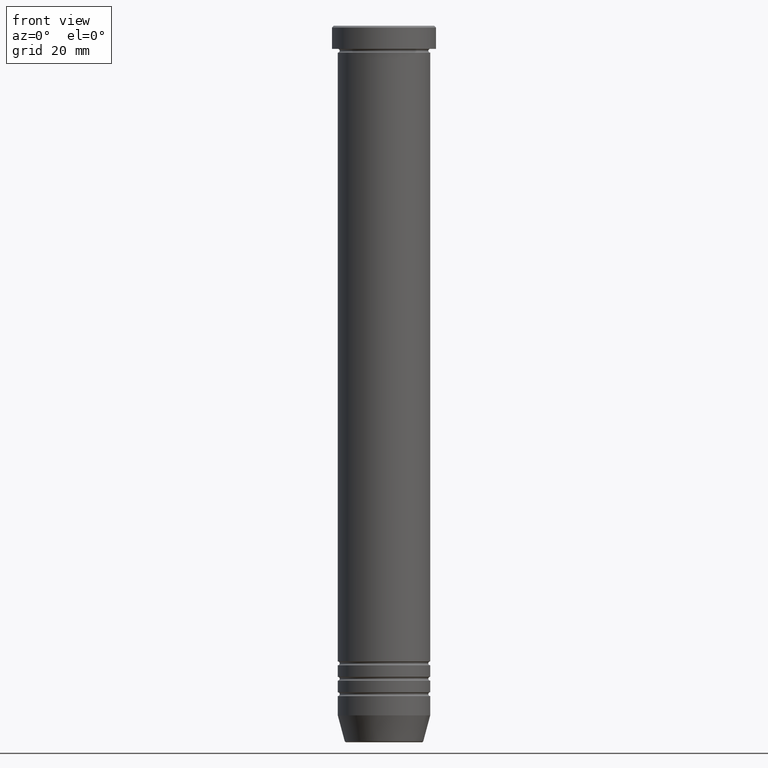
[diagram: clean part render]
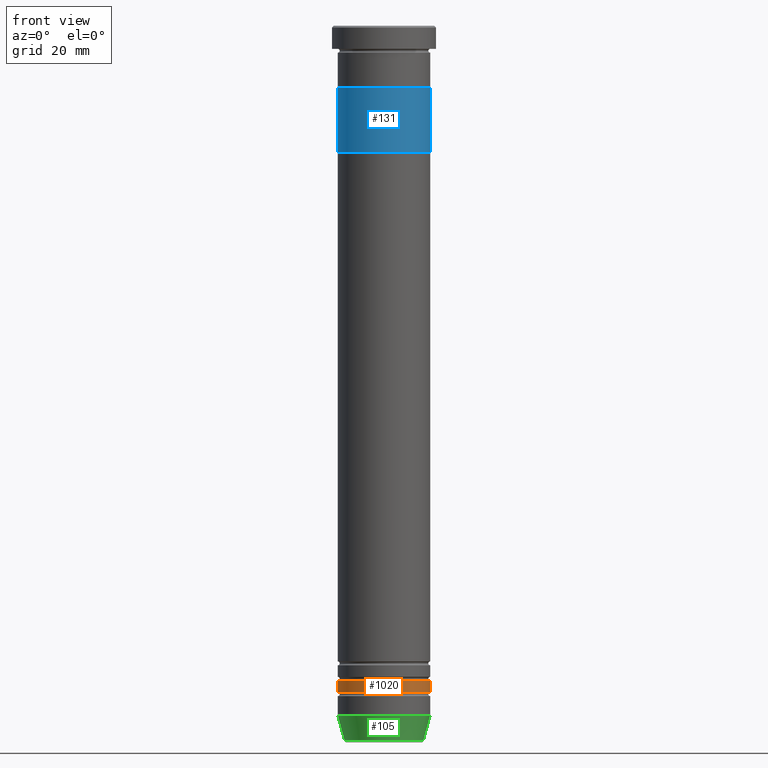
[diagram: same view with three faces highlighted in distinct colors, each labeled with its STEP entity id]
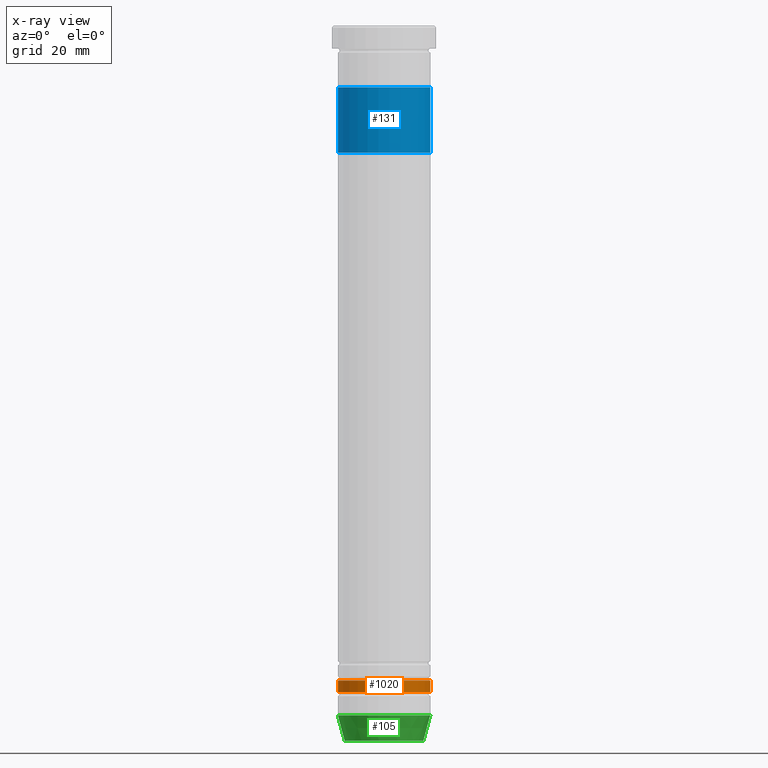
[diagram: x-ray of the same camera — body ghosted, the three highlighted faces saturated]
A machine part, front view with three faces highlighted in distinct colors.
The next image is the same camera in x-ray (body ghosted, the three faces saturated) — at least one of them is partly hidden behind the body in this view.
Their STEP definitions:

[orange] entity #1020 — the highlighted cylindrical surface (partial cylindrical patch) has radius 12 mm, axis along (-0, -0, 1).
#19 = VERTEX_POINT ( 'NONE', #24 ) ;
#24 = CARTESIAN_POINT ( 'NONE',  ( -11.99999999999999467, 1.469576158976823553E-15, -173.0000000000000000 ) ) ;
#71 = FACE_OUTER_BOUND ( 'NONE', #1112, .T. ) ;
#121 = CARTESIAN_POINT ( 'NONE',  ( 0.000000000000000000, 0.000000000000000000, -170.0000000000000000 ) ) ;
#149 = LINE ( 'NONE', #1139, #267 ) ;
#171 = CIRCLE ( 'NONE', #317, 11.99999999999999467 ) ;
#210 = ORIENTED_EDGE ( 'NONE', *, *, #517, .T. ) ;
#235 = VERTEX_POINT ( 'NONE', #499 ) ;
#241 = CARTESIAN_POINT ( 'NONE',  ( 11.99999999999999467, 0.000000000000000000, -173.0000000000000000 ) ) ;
#254 = CARTESIAN_POINT ( 'NONE',  ( -11.99999999999999822, 1.469576158976823750E-15, 0.000000000000000000 ) ) ;
#267 = VECTOR ( 'NONE', #778, 1000.000000000000000 ) ;
#285 = AXIS2_PLACEMENT_3D ( 'NONE', #408, #328, #513 ) ;
#289 = DIRECTION ( 'NONE',  ( 1.000000000000000000, 0.000000000000000000, 0.000000000000000000 ) ) ;
#317 = AXIS2_PLACEMENT_3D ( 'NONE', #662, #1018, #289 ) ;
#318 = DIRECTION ( 'NONE',  ( 1.000000000000000000, 0.000000000000000000, 0.000000000000000000 ) ) ;
#328 = DIRECTION ( 'NONE',  ( -0.000000000000000000, -0.000000000000000000, 1.000000000000000000 ) ) ;
#408 = CARTESIAN_POINT ( 'NONE',  ( 0.000000000000000000, 0.000000000000000000, 0.000000000000000000 ) ) ;
#410 = ORIENTED_EDGE ( 'NONE', *, *, #1034, .T. ) ;
#475 = DIRECTION ( 'NONE',  ( -0.000000000000000000, -0.000000000000000000, 1.000000000000000000 ) ) ;
#499 = CARTESIAN_POINT ( 'NONE',  ( 12.00000000000000178, 0.000000000000000000, -170.0000000000000000 ) ) ;
#513 = DIRECTION ( 'NONE',  ( 1.000000000000000000, 0.000000000000000000, 0.000000000000000000 ) ) ;
#517 = EDGE_CURVE ( 'NONE', #19, #1004, #171, .T. ) ;
#564 = EDGE_CURVE ( 'NONE', #19, #824, #1051, .T. ) ;
#590 = CYLINDRICAL_SURFACE ( 'NONE', #285, 11.99999999999999822 ) ;
#602 = CARTESIAN_POINT ( 'NONE',  ( -12.00000000000000178, 1.469576158976824144E-15, -170.0000000000000000 ) ) ;
#648 = DIRECTION ( 'NONE',  ( -0.000000000000000000, -0.000000000000000000, 1.000000000000000000 ) ) ;
#657 = AXIS2_PLACEMENT_3D ( 'NONE', #121, #475, #318 ) ;
#662 = CARTESIAN_POINT ( 'NONE',  ( 0.000000000000000000, 0.000000000000000000, -173.0000000000000000 ) ) ;
#702 = EDGE_CURVE ( 'NONE', #824, #235, #860, .T. ) ;
#765 = ORIENTED_EDGE ( 'NONE', *, *, #564, .F. ) ;
#778 = DIRECTION ( 'NONE',  ( -0.000000000000000000, -0.000000000000000000, 1.000000000000000000 ) ) ;
#824 = VERTEX_POINT ( 'NONE', #602 ) ;
#860 = CIRCLE ( 'NONE', #657, 12.00000000000000178 ) ;
#913 = VECTOR ( 'NONE', #648, 1000.000000000000000 ) ;
#981 = ORIENTED_EDGE ( 'NONE', *, *, #702, .F. ) ;
#1004 = VERTEX_POINT ( 'NONE', #241 ) ;
#1018 = DIRECTION ( 'NONE',  ( -0.000000000000000000, -0.000000000000000000, 1.000000000000000000 ) ) ;
#1020 = ADVANCED_FACE ( 'NONE', ( #71 ), #590, .T. ) ;
#1034 = EDGE_CURVE ( 'NONE', #1004, #235, #149, .T. ) ;
#1051 = LINE ( 'NONE', #254, #913 ) ;
#1112 = EDGE_LOOP ( 'NONE', ( #765, #210, #410, #981 ) ) ;
#1139 = CARTESIAN_POINT ( 'NONE',  ( 11.99999999999999822, 0.000000000000000000, 0.000000000000000000 ) ) ;

[blue] entity #131 — the highlighted cylindrical surface (partial cylindrical patch) has radius 12 mm, axis along (-0, -0, 1).
#11 = EDGE_CURVE ( 'NONE', #423, #629, #511, .T. ) ;
#91 = DIRECTION ( 'NONE',  ( -0.000000000000000000, -0.000000000000000000, 1.000000000000000000 ) ) ;
#115 = AXIS2_PLACEMENT_3D ( 'NONE', #944, #669, #316 ) ;
#131 = ADVANCED_FACE ( 'NONE', ( #375 ), #645, .T. ) ;
#148 = EDGE_CURVE ( 'NONE', #423, #462, #457, .T. ) ;
#179 = AXIS2_PLACEMENT_3D ( 'NONE', #910, #460, #821 ) ;
#182 = VECTOR ( 'NONE', #299, 1000.000000000000000 ) ;
#201 = CARTESIAN_POINT ( 'NONE',  ( 12.00000000000000178, 0.000000000000000000, -33.00000000000000000 ) ) ;
#211 = EDGE_CURVE ( 'NONE', #462, #746, #524, .T. ) ;
#273 = CARTESIAN_POINT ( 'NONE',  ( 12.00000000000000178, 0.000000000000000000, -33.00000000000000000 ) ) ;
#299 = DIRECTION ( 'NONE',  ( -0.000000000000000000, -0.000000000000000000, 1.000000000000000000 ) ) ;
#316 = DIRECTION ( 'NONE',  ( -1.000000000000000000, 0.000000000000000000, 0.000000000000000000 ) ) ;
#321 = VECTOR ( 'NONE', #91, 1000.000000000000000 ) ;
#350 = ORIENTED_EDGE ( 'NONE', *, *, #148, .T. ) ;
#375 = FACE_OUTER_BOUND ( 'NONE', #520, .T. ) ;
#376 = AXIS2_PLACEMENT_3D ( 'NONE', #652, #1019, #741 ) ;
#423 = VERTEX_POINT ( 'NONE', #273 ) ;
#439 = ORIENTED_EDGE ( 'NONE', *, *, #11, .F. ) ;
#457 = LINE ( 'NONE', #201, #182 ) ;
#460 = DIRECTION ( 'NONE',  ( 0.000000000000000000, 0.000000000000000000, -1.000000000000000000 ) ) ;
#462 = VERTEX_POINT ( 'NONE', #563 ) ;
#511 = CIRCLE ( 'NONE', #179, 12.00000000000000178 ) ;
#520 = EDGE_LOOP ( 'NONE', ( #681, #439, #350, #1017 ) ) ;
#524 = CIRCLE ( 'NONE', #115, 12.00000000000000178 ) ;
#532 = LINE ( 'NONE', #893, #321 ) ;
#563 = CARTESIAN_POINT ( 'NONE',  ( 12.00000000000000178, 0.000000000000000000, -16.00000000000000000 ) ) ;
#629 = VERTEX_POINT ( 'NONE', #999 ) ;
#645 = CYLINDRICAL_SURFACE ( 'NONE', #376, 12.00000000000000178 ) ;
#652 = CARTESIAN_POINT ( 'NONE',  ( 0.000000000000000000, 0.000000000000000000, -33.00000000000000000 ) ) ;
#669 = DIRECTION ( 'NONE',  ( 0.000000000000000000, 0.000000000000000000, -1.000000000000000000 ) ) ;
#681 = ORIENTED_EDGE ( 'NONE', *, *, #1148, .F. ) ;
#741 = DIRECTION ( 'NONE',  ( 1.000000000000000000, 0.000000000000000000, 0.000000000000000000 ) ) ;
#746 = VERTEX_POINT ( 'NONE', #827 ) ;
#821 = DIRECTION ( 'NONE',  ( -1.000000000000000000, 0.000000000000000000, 0.000000000000000000 ) ) ;
#827 = CARTESIAN_POINT ( 'NONE',  ( -12.00000000000000178, 1.469576158976824144E-15, -16.00000000000000000 ) ) ;
#893 = CARTESIAN_POINT ( 'NONE',  ( -12.00000000000000178, 1.469576158976824144E-15, -33.00000000000000000 ) ) ;
#910 = CARTESIAN_POINT ( 'NONE',  ( 0.000000000000000000, 0.000000000000000000, -33.00000000000000000 ) ) ;
#944 = CARTESIAN_POINT ( 'NONE',  ( 0.000000000000000000, 0.000000000000000000, -16.00000000000000000 ) ) ;
#999 = CARTESIAN_POINT ( 'NONE',  ( -12.00000000000000178, 1.469576158976824144E-15, -33.00000000000000000 ) ) ;
#1017 = ORIENTED_EDGE ( 'NONE', *, *, #211, .T. ) ;
#1019 = DIRECTION ( 'NONE',  ( -0.000000000000000000, -0.000000000000000000, 1.000000000000000000 ) ) ;
#1148 = EDGE_CURVE ( 'NONE', #629, #746, #532, .T. ) ;

[green] entity #105 — the highlighted conical surface has half-angle 15 deg.
#16 = CIRCLE ( 'NONE', #722, 12.00000000000000178 ) ;
#46 = CARTESIAN_POINT ( 'NONE',  ( 0.000000000000000000, 0.000000000000000000, -179.0000000000000000 ) ) ;
#82 = EDGE_CURVE ( 'NONE', #1055, #161, #123, .T. ) ;
#105 = ADVANCED_FACE ( 'NONE', ( #295 ), #236, .T. ) ;
#110 = CARTESIAN_POINT ( 'NONE',  ( 10.22365507213718949, 0.000000000000000000, -185.6294095225512422 ) ) ;
#123 = CIRCLE ( 'NONE', #433, 10.22365507213718949 ) ;
#161 = VERTEX_POINT ( 'NONE', #110 ) ;
#176 = ORIENTED_EDGE ( 'NONE', *, *, #794, .F. ) ;
#214 = CARTESIAN_POINT ( 'NONE',  ( 12.00000000000000178, 0.000000000000000000, -179.0000000000000000 ) ) ;
#236 = CONICAL_SURFACE ( 'NONE', #887, 10.12435565298213547, 0.2617993877991502405 ) ;
#238 = CARTESIAN_POINT ( 'NONE',  ( 0.000000000000000000, 0.000000000000000000, -185.6294095225512422 ) ) ;
#243 = ORIENTED_EDGE ( 'NONE', *, *, #850, .T. ) ;
#262 = LINE ( 'NONE', #348, #535 ) ;
#295 = FACE_OUTER_BOUND ( 'NONE', #1026, .T. ) ;
#330 = DIRECTION ( 'NONE',  ( 0.2588190451025214611, 0.000000000000000000, 0.9659258262890679791 ) ) ;
#348 = CARTESIAN_POINT ( 'NONE',  ( -10.12435565298213547, 1.239875974385398349E-15, -186.0000000000000000 ) ) ;
#368 = CARTESIAN_POINT ( 'NONE',  ( 0.000000000000000000, 0.000000000000000000, -186.0000000000000000 ) ) ;
#395 = DIRECTION ( 'NONE',  ( -0.000000000000000000, -0.000000000000000000, 1.000000000000000000 ) ) ;
#433 = AXIS2_PLACEMENT_3D ( 'NONE', #238, #588, #952 ) ;
#491 = CARTESIAN_POINT ( 'NONE',  ( -10.22365507213718949, 1.360806402472382941E-15, -185.6294095225512422 ) ) ;
#535 = VECTOR ( 'NONE', #1066, 1000.000000000000114 ) ;
#588 = DIRECTION ( 'NONE',  ( -0.000000000000000000, -0.000000000000000000, 1.000000000000000000 ) ) ;
#614 = CARTESIAN_POINT ( 'NONE',  ( -12.00000000000000178, 1.469576158976824144E-15, -179.0000000000000000 ) ) ;
#618 = EDGE_CURVE ( 'NONE', #1055, #1085, #262, .T. ) ;
#685 = VERTEX_POINT ( 'NONE', #214 ) ;
#690 = CARTESIAN_POINT ( 'NONE',  ( 10.12435565298213547, 0.000000000000000000, -186.0000000000000000 ) ) ;
#722 = AXIS2_PLACEMENT_3D ( 'NONE', #46, #395, #751 ) ;
#726 = DIRECTION ( 'NONE',  ( -0.000000000000000000, -0.000000000000000000, 1.000000000000000000 ) ) ;
#751 = DIRECTION ( 'NONE',  ( 1.000000000000000000, 0.000000000000000000, 0.000000000000000000 ) ) ;
#794 = EDGE_CURVE ( 'NONE', #1085, #685, #16, .T. ) ;
#803 = VECTOR ( 'NONE', #330, 1000.000000000000114 ) ;
#831 = DIRECTION ( 'NONE',  ( 1.000000000000000000, 0.000000000000000000, 0.000000000000000000 ) ) ;
#850 = EDGE_CURVE ( 'NONE', #161, #685, #1049, .T. ) ;
#887 = AXIS2_PLACEMENT_3D ( 'NONE', #368, #726, #831 ) ;
#952 = DIRECTION ( 'NONE',  ( -1.000000000000000000, 0.000000000000000000, 0.000000000000000000 ) ) ;
#985 = ORIENTED_EDGE ( 'NONE', *, *, #82, .T. ) ;
#1026 = EDGE_LOOP ( 'NONE', ( #1114, #985, #243, #176 ) ) ;
#1049 = LINE ( 'NONE', #690, #803 ) ;
#1055 = VERTEX_POINT ( 'NONE', #491 ) ;
#1066 = DIRECTION ( 'NONE',  ( -0.2588190451025214611, 3.169619151431774186E-17, 0.9659258262890679791 ) ) ;
#1085 = VERTEX_POINT ( 'NONE', #614 ) ;
#1114 = ORIENTED_EDGE ( 'NONE', *, *, #618, .F. ) ;